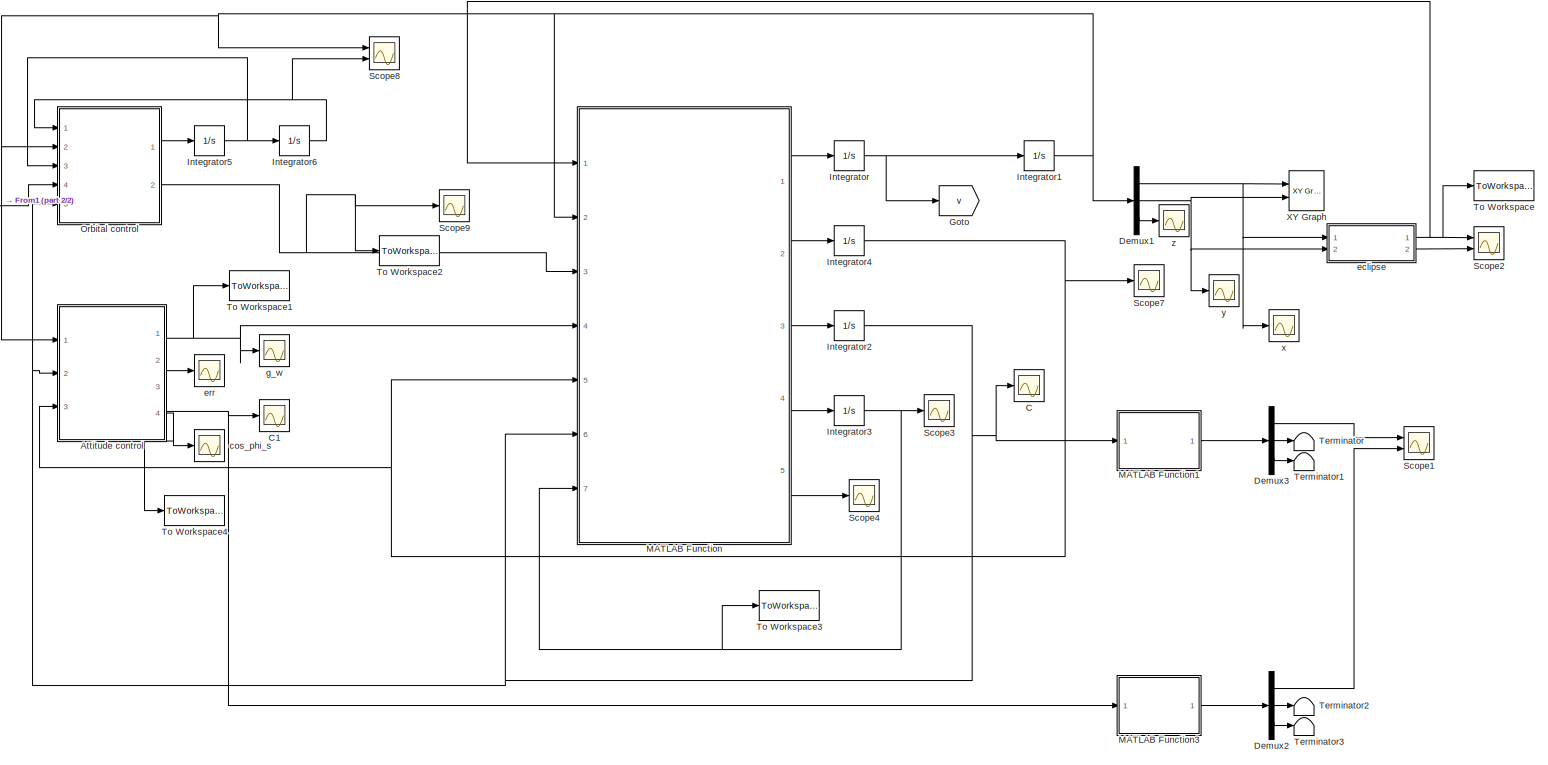
[diagram: root canvas - part 1/2, most of the canvas]
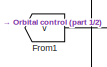
[diagram: root canvas - part 2/2, top left region]
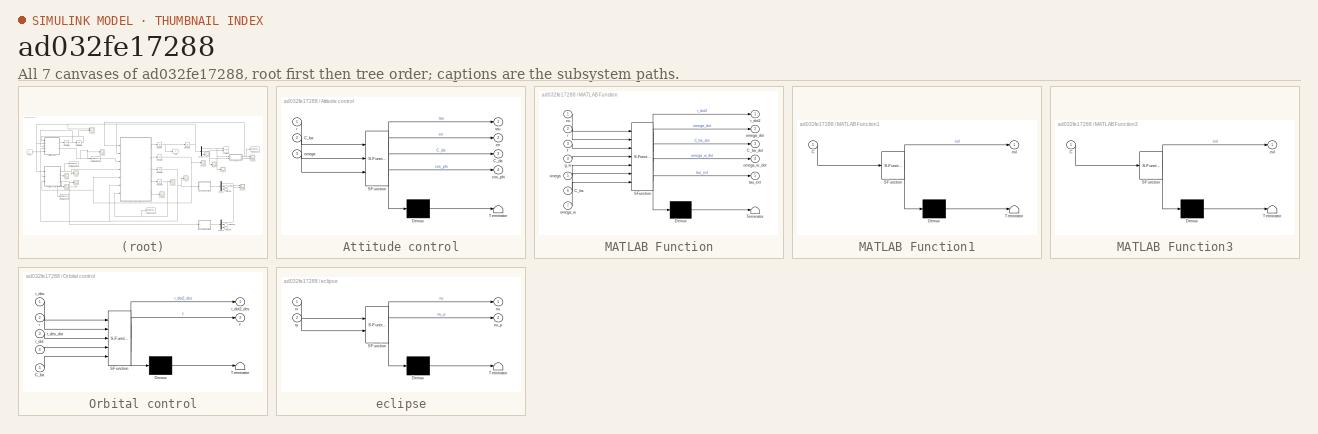
[diagram: thumbnail index - all 7 canvases of the model, root first then tree order]
MODEL slx_ad032fe17288
KIND model
CONFIG AbsTol = auto
CONFIG EnableMultiTasking = off
CONFIG FixedStep = 1
CONFIG MaxStep = auto
CONFIG MinStep = auto
CONFIG RelTol = 1e-6
CONFIG SampleTimeConstraint = Unconstrained
CONFIG Solver = ode23t
CONFIG SolverName = ode23t
CONFIG StartTime = 0.0
CONFIG StopTime = 3600*24*2
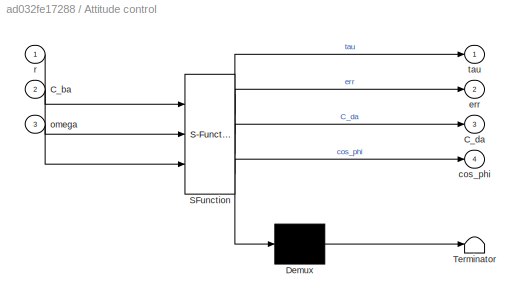
BLOCK [SubSystem] Attitude control
  ErrorFcn = Stateflow.Translate.translate
  PermitHierarchicalResolution = ExplicitOnly
  Ports = [3, 4]
  RequestExecContextInheritance = off
  SFBlockType = MATLAB Function
  TreatAsAtomicUnit = on
BLOCK [Demux] Attitude control/ Demux 
  Outputs = 1
  Ports = [1, 1]
BLOCK [S-Function] Attitude control/ SFunction 
  EnableBusSupport = on
  FunctionName = sf_sfun
  PortCounts = [3 5]
  Ports = [3, 5]
  SFcnIsStateOwnerBlock = off
  SFunctionDeploymentMode = off
  Tag = Stateflow S-Function satellite 4
BLOCK [Terminator] Attitude control/ Terminator 
BLOCK [Inport] Attitude control/C_ba
  IconDisplay = Port number
  Port = 2
BLOCK [Outport] Attitude control/C_da
  IconDisplay = Port number
  Port = 3
BLOCK [Outport] Attitude control/cos_phi
  IconDisplay = Port number
  Port = 4
BLOCK [Outport] Attitude control/err
  IconDisplay = Port number
  Port = 2
BLOCK [Inport] Attitude control/omega
  IconDisplay = Port number
  Port = 3
BLOCK [Inport] Attitude control/r
  IconDisplay = Port number
BLOCK [Outport] Attitude control/tau
  IconDisplay = Port number
BLOCK [Scope] C
  Floating = off
  NumInputPorts = 1
  Ports = [1]
  ScopeSpecificationString = Simulink.scopes.TimeScopeBlockCfg('CurrentConfiguration', extmgr.ConfigurationSet(extmgr.Configuration('Core','General UI',true),extmgr.Configuration('Core','Source UI',true),extmgr.Configuration('Sources','WiredSimulink',true,'DataLoggingVariableName','ScopeData8'),extmgr.Configuration('Visuals','Time Domain',true,'SerializedDisplays',{struct('MinYLimReal','-1.25016','MaxYLimReal','1.25009','YLab...<+1907ch>
BLOCK [Scope] C1
  Floating = off
  NumInputPorts = 1
  Ports = [1]
  ScopeSpecificationString = Simulink.scopes.TimeScopeBlockCfg('CurrentConfiguration', extmgr.ConfigurationSet(extmgr.Configuration('Core','General UI',true),extmgr.Configuration('Core','Source UI',true),extmgr.Configuration('Sources','WiredSimulink',true,'DataLoggingVariableName','ScopeData9'),extmgr.Configuration('Visuals','Time Domain',true,'SerializedDisplays',{struct('MinYLimReal','-1.25','MaxYLimReal','1.25','YLabelReal...<+1978ch>
BLOCK [Demux] Demux1
  DisplayOption = bar
  Outputs = 3
  Ports = [1, 3]
BLOCK [Demux] Demux2
  DisplayOption = bar
  Outputs = 3
  Ports = [1, 3]
BLOCK [Demux] Demux3
  DisplayOption = bar
  Outputs = 3
  Ports = [1, 3]
BLOCK [From] From1
  GotoTag = v
BLOCK [Goto] Goto
  GotoTag = v
BLOCK [Integrator] Integrator
  InitialCondition = [0; 3.0690; 0]
  Ports = [1, 1]
BLOCK [Integrator] Integrator1
  InitialCondition = [-42164 ; 0 ; 0]
  Ports = [1, 1]
BLOCK [Integrator] Integrator2
  InitialCondition = eye(3)
  Ports = [1, 1]
BLOCK [Integrator] Integrator3
  InitialCondition = [0; 0; 0]
  Ports = [1, 1]
BLOCK [Integrator] Integrator4
  InitialCondition = [0;0;0]
  Ports = [1, 1]
BLOCK [Integrator] Integrator5
  InitialCondition = [0; 3.0690; 0]
  Ports = [1, 1]
BLOCK [Integrator] Integrator6
  InitialCondition = [-42164 ; 0 ; 0]
  Ports = [1, 1]
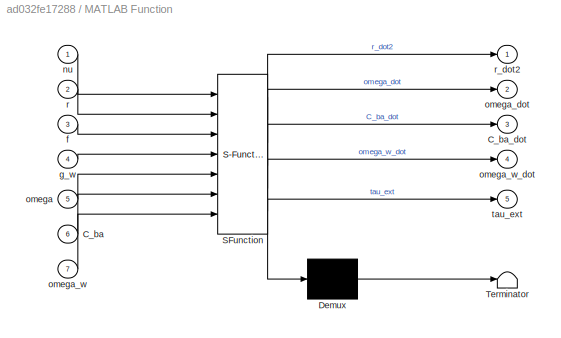
BLOCK [SubSystem] MATLAB Function
  ErrorFcn = Stateflow.Translate.translate
  PermitHierarchicalResolution = ExplicitOnly
  Ports = [7, 5]
  RequestExecContextInheritance = off
  SFBlockType = MATLAB Function
  TreatAsAtomicUnit = on
BLOCK [Demux] MATLAB Function/ Demux 
  Outputs = 1
  Ports = [1, 1]
BLOCK [S-Function] MATLAB Function/ SFunction 
  EnableBusSupport = on
  FunctionName = sf_sfun
  PortCounts = [7 6]
  Ports = [7, 6]
  SFcnIsStateOwnerBlock = off
  SFunctionDeploymentMode = off
  Tag = Stateflow S-Function satellite 2
BLOCK [Terminator] MATLAB Function/ Terminator 
BLOCK [Inport] MATLAB Function/C_ba
  IconDisplay = Port number
  Port = 6
BLOCK [Outport] MATLAB Function/C_ba_dot
  IconDisplay = Port number
  Port = 3
BLOCK [Inport] MATLAB Function/f
  IconDisplay = Port number
  Port = 3
BLOCK [Inport] MATLAB Function/g_w
  IconDisplay = Port number
  Port = 4
BLOCK [Inport] MATLAB Function/nu
  IconDisplay = Port number
BLOCK [Inport] MATLAB Function/omega
  IconDisplay = Port number
  Port = 5
BLOCK [Outport] MATLAB Function/omega_dot
  IconDisplay = Port number
  Port = 2
BLOCK [Inport] MATLAB Function/omega_w
  IconDisplay = Port number
  Port = 7
BLOCK [Outport] MATLAB Function/omega_w_dot
  IconDisplay = Port number
  Port = 4
BLOCK [Inport] MATLAB Function/r
  IconDisplay = Port number
  Port = 2
BLOCK [Outport] MATLAB Function/r_dot2
  IconDisplay = Port number
BLOCK [Outport] MATLAB Function/tau_ext
  IconDisplay = Port number
  Port = 5
BLOCK [SubSystem] MATLAB Function1
  ErrorFcn = Stateflow.Translate.translate
  PermitHierarchicalResolution = ExplicitOnly
  Ports = [1, 1]
  RequestExecContextInheritance = off
  SFBlockType = MATLAB Function
  TreatAsAtomicUnit = on
BLOCK [Demux] MATLAB Function1/ Demux 
  Outputs = 1
  Ports = [1, 1]
BLOCK [S-Function] MATLAB Function1/ SFunction 
  EnableBusSupport = on
  FunctionName = sf_sfun
  PortCounts = [1 2]
  Ports = [1, 2]
  SFcnIsStateOwnerBlock = off
  SFunctionDeploymentMode = off
  Tag = Stateflow S-Function satellite 5
BLOCK [Terminator] MATLAB Function1/ Terminator 
BLOCK [Inport] MATLAB Function1/C
  IconDisplay = Port number
BLOCK [Outport] MATLAB Function1/eul
  IconDisplay = Port number
BLOCK [SubSystem] MATLAB Function3
  ErrorFcn = Stateflow.Translate.translate
  PermitHierarchicalResolution = ExplicitOnly
  Ports = [1, 1]
  RequestExecContextInheritance = off
  SFBlockType = MATLAB Function
  TreatAsAtomicUnit = on
BLOCK [Demux] MATLAB Function3/ Demux 
  Outputs = 1
  Ports = [1, 1]
BLOCK [S-Function] MATLAB Function3/ SFunction 
  EnableBusSupport = on
  FunctionName = sf_sfun
  PortCounts = [1 2]
  Ports = [1, 2]
  SFcnIsStateOwnerBlock = off
  SFunctionDeploymentMode = off
  Tag = Stateflow S-Function satellite 6
BLOCK [Terminator] MATLAB Function3/ Terminator 
BLOCK [Inport] MATLAB Function3/C
  IconDisplay = Port number
BLOCK [Outport] MATLAB Function3/eul
  IconDisplay = Port number
BLOCK [SubSystem] Orbital control
  ErrorFcn = Stateflow.Translate.translate
  PermitHierarchicalResolution = ExplicitOnly
  Ports = [5, 2]
  RequestExecContextInheritance = off
  SFBlockType = MATLAB Function
  TreatAsAtomicUnit = on
BLOCK [Demux] Orbital control/ Demux 
  Outputs = 1
  Ports = [1, 1]
BLOCK [S-Function] Orbital control/ SFunction 
  EnableBusSupport = on
  FunctionName = sf_sfun
  PortCounts = [5 3]
  Ports = [5, 3]
  SFcnIsStateOwnerBlock = off
  SFunctionDeploymentMode = off
  Tag = Stateflow S-Function satellite 7
BLOCK [Terminator] Orbital control/ Terminator 
BLOCK [Inport] Orbital control/C_ba
  IconDisplay = Port number
  Port = 5
BLOCK [Outport] Orbital control/f
  IconDisplay = Port number
  Port = 2
BLOCK [Inport] Orbital control/r
  IconDisplay = Port number
  Port = 2
BLOCK [Inport] Orbital control/r_des
  IconDisplay = Port number
BLOCK [Inport] Orbital control/r_des_dot
  IconDisplay = Port number
  Port = 3
BLOCK [Inport] Orbital control/r_dot
  IconDisplay = Port number
  Port = 4
BLOCK [Outport] Orbital control/r_dot2_des
  IconDisplay = Port number
BLOCK [Scope] Scope1
  Floating = off
  NumInputPorts = 2
  Ports = [2]
  ScopeSpecificationString = Simulink.scopes.TimeScopeBlockCfg('CurrentConfiguration', extmgr.ConfigurationSet(extmgr.Configuration('Core','General UI',true),extmgr.Configuration('Core','Source UI',true),extmgr.Configuration('Sources','WiredSimulink',true,'DataLoggingVariableName','ScopeData2'),extmgr.Configuration('Visuals','Time Domain',true,'SerializedDisplays',{struct('MinYLimReal','-3.92693','MaxYLimReal','3.92696','YLab...<+1480ch>
BLOCK [Scope] Scope2
  Floating = off
  NumInputPorts = 2
  Ports = [2]
  ScopeSpecificationString = Simulink.scopes.TimeScopeBlockCfg('CurrentConfiguration', extmgr.ConfigurationSet(extmgr.Configuration('Core','General UI',true),extmgr.Configuration('Core','Source UI',true),extmgr.Configuration('Sources','WiredSimulink',true,'DataLoggingVariableName','ScopeData1'),extmgr.Configuration('Visuals','Time Domain',true,'SerializedDisplays',{struct('MinYLimReal','-17.97138','MaxYLimReal','3.10793','YLa...<+1794ch>
BLOCK [Scope] Scope3
  Floating = off
  NumInputPorts = 1
  Ports = [1]
  ScopeSpecificationString = Simulink.scopes.TimeScopeBlockCfg('CurrentConfiguration', extmgr.ConfigurationSet(extmgr.Configuration('Core','General UI',true),extmgr.Configuration('Core','Source UI',true),extmgr.Configuration('Sources','WiredSimulink',true,'DataLoggingVariableName','ScopeData1'),extmgr.Configuration('Visuals','Time Domain',true,'SerializedDisplays',{struct('MinYLimReal','-0.00656','MaxYLimReal','0.05583','YLab...<+1433ch>
BLOCK [Scope] Scope4
  Floating = off
  NumInputPorts = 1
  Ports = [1]
  ScopeSpecificationString = Simulink.scopes.TimeScopeBlockCfg('CurrentConfiguration', extmgr.ConfigurationSet(extmgr.Configuration('Core','General UI',true),extmgr.Configuration('Core','Source UI',true),extmgr.Configuration('Sources','WiredSimulink',true,'DataLoggingVariableName','ScopeData1'),extmgr.Configuration('Visuals','Time Domain',true,'SerializedDisplays',{struct('MinYLimReal','-0.00221','MaxYLimReal','0.00992','YLab...<+1488ch>
BLOCK [Scope] Scope7
  Floating = off
  NumInputPorts = 1
  Ports = [1]
  ScopeSpecificationString = Simulink.scopes.TimeScopeBlockCfg('CurrentConfiguration', extmgr.ConfigurationSet(extmgr.Configuration('Core','General UI',true),extmgr.Configuration('Core','Source UI',true),extmgr.Configuration('Sources','WiredSimulink',true,'DataLoggingVariableName','ScopeData3'),extmgr.Configuration('Visuals','Time Domain',true,'SerializedDisplays',{struct('MinYLimReal','-0.00024','MaxYLimReal','0.00008','YLab...<+1433ch>
BLOCK [Scope] Scope8
  Floating = off
  NumInputPorts = 2
  Ports = [2]
  ScopeSpecificationString = Simulink.scopes.TimeScopeBlockCfg('CurrentConfiguration', extmgr.ConfigurationSet(extmgr.Configuration('Core','General UI',true),extmgr.Configuration('Core','Source UI',true),extmgr.Configuration('Sources','WiredSimulink',true,'DataLoggingVariableName','ScopeData1'),extmgr.Configuration('Visuals','Time Domain',true,'SerializedDisplays',{struct('MinYLimReal','-52685.62612','MaxYLimReal','52530.6207...<+1584ch>
BLOCK [Scope] Scope9
  Floating = off
  NumInputPorts = 1
  Ports = [1]
  ScopeSpecificationString = Simulink.scopes.TimeScopeBlockCfg('CurrentConfiguration', extmgr.ConfigurationSet(extmgr.Configuration('Core','General UI',true),extmgr.Configuration('Core','Source UI',true),extmgr.Configuration('Sources','WiredSimulink',true,'DataLoggingVariableName','ScopeData2'),extmgr.Configuration('Visuals','Time Domain',true,'SerializedDisplays',{struct('MinYLimReal','-21276637.16293','MaxYLimReal','2068049...<+1553ch>
BLOCK [Terminator] Terminator
BLOCK [Terminator] Terminator1
BLOCK [Terminator] Terminator2
BLOCK [Terminator] Terminator3
BLOCK [ToWorkspace] To Workspace
  FixptAsFi = on
  MaxDataPoints = inf
  Ports = [1]
  SampleTime = -1
  Save2DSignal = 3-D array (concatenate along third dimension)
  SaveFormat = Timeseries
  VariableName = nu_sim
BLOCK [ToWorkspace] To Workspace1
  FixptAsFi = on
  MaxDataPoints = inf
  Ports = [1]
  SampleTime = -1
  Save2DSignal = 3-D array (concatenate along third dimension)
  SaveFormat = Timeseries
  VariableName = g_w
BLOCK [ToWorkspace] To Workspace2
  FixptAsFi = on
  MaxDataPoints = inf
  Ports = [1]
  SampleTime = -1
  Save2DSignal = 3-D array (concatenate along third dimension)
  SaveFormat = Timeseries
  VariableName = f
BLOCK [ToWorkspace] To Workspace3
  FixptAsFi = on
  MaxDataPoints = inf
  Ports = [1]
  SampleTime = -1
  Save2DSignal = 3-D array (concatenate along third dimension)
  SaveFormat = Timeseries
  VariableName = omega_w
BLOCK [ToWorkspace] To Workspace4
  FixptAsFi = on
  MaxDataPoints = inf
  Ports = [1]
  SampleTime = -1
  Save2DSignal = 3-D array (concatenate along third dimension)
  SaveFormat = Timeseries
  VariableName = cos_phi_s
BLOCK [Reference] XY Graph  REF=simulink/Sinks/XY Graph
  Ports = [2]
  SourceBlock = simulink/Sinks/XY Graph
  SourceProductBaseCode = SL
  SourceProductName = Simulink
  SourceType = XY scope.
BLOCK [Scope] cos_phi_s 
  Floating = off
  NumInputPorts = 1
  Ports = [1]
  ScopeSpecificationString = Simulink.scopes.TimeScopeBlockCfg('CurrentConfiguration', extmgr.ConfigurationSet(extmgr.Configuration('Core','General UI',true),extmgr.Configuration('Core','Source UI',true),extmgr.Configuration('Sources','WiredSimulink',true,'DataLoggingVariableName','ScopeData1'),extmgr.Configuration('Visuals','Time Domain',true,'SerializedDisplays',{struct('MinYLimReal','-1.25001','MaxYLimReal','1.25001','YLab...<+1756ch>
BLOCK [SubSystem] eclipse
  ErrorFcn = Stateflow.Translate.translate
  PermitHierarchicalResolution = ExplicitOnly
  Ports = [2, 2]
  RequestExecContextInheritance = off
  SFBlockType = MATLAB Function
  TreatAsAtomicUnit = on
BLOCK [Demux] eclipse/ Demux 
  Outputs = 1
  Ports = [1, 1]
BLOCK [S-Function] eclipse/ SFunction 
  EnableBusSupport = on
  FunctionName = sf_sfun
  PortCounts = [2 3]
  Ports = [2, 3]
  SFcnIsStateOwnerBlock = off
  SFunctionDeploymentMode = off
  Tag = Stateflow S-Function satellite 1
BLOCK [Terminator] eclipse/ Terminator 
BLOCK [Outport] eclipse/nu
  IconDisplay = Port number
BLOCK [Outport] eclipse/nu_p
  IconDisplay = Port number
  Port = 2
BLOCK [Inport] eclipse/rx
  IconDisplay = Port number
BLOCK [Inport] eclipse/ry
  IconDisplay = Port number
  Port = 2
BLOCK [Scope] err
  Floating = off
  NumInputPorts = 1
  Ports = [1]
  ScopeSpecificationString = Simulink.scopes.TimeScopeBlockCfg('CurrentConfiguration', extmgr.ConfigurationSet(extmgr.Configuration('Core','General UI',true),extmgr.Configuration('Core','Source UI',true),extmgr.Configuration('Sources','WiredSimulink',true,'DataLoggingVariableName','ScopeData6'),extmgr.Configuration('Visuals','Time Domain',true,'SerializedDisplays',{struct('MinYLimReal','-0.01209','MaxYLimReal','0.00134','YLab...<+1837ch>
BLOCK [Scope] g_w
  Floating = off
  NumInputPorts = 1
  Ports = [1]
  ScopeSpecificationString = Simulink.scopes.TimeScopeBlockCfg('CurrentConfiguration', extmgr.ConfigurationSet(extmgr.Configuration('Core','General UI',true),extmgr.Configuration('Core','Source UI',true),extmgr.Configuration('Sources','WiredSimulink',true,'DataLoggingVariableName','ScopeData7'),extmgr.Configuration('Visuals','Time Domain',true,'SerializedDisplays',{struct('MinYLimReal','-0.00022','MaxYLimReal','0.00023','YLab...<+1478ch>
BLOCK [Scope] x
  Floating = off
  NumInputPorts = 1
  Ports = [1]
  ScopeSpecificationString = Simulink.scopes.TimeScopeBlockCfg('CurrentConfiguration', extmgr.ConfigurationSet(extmgr.Configuration('Core','General UI',true),extmgr.Configuration('Core','Source UI',true),extmgr.Configuration('Sources','WiredSimulink',true,'DataLoggingVariableName','ScopeData1'),extmgr.Configuration('Visuals','Time Domain',true,'SerializedDisplays',{struct('MinYLimReal','-52666.33256','MaxYLimReal','52356.9372...<+1744ch>
BLOCK [Scope] y
  Floating = off
  NumInputPorts = 1
  Ports = [1]
  ScopeSpecificationString = Simulink.scopes.TimeScopeBlockCfg('CurrentConfiguration', extmgr.ConfigurationSet(extmgr.Configuration('Core','General UI',true),extmgr.Configuration('Core','Source UI',true),extmgr.Configuration('Sources','WiredSimulink',true,'DataLoggingVariableName','ScopeData4'),extmgr.Configuration('Visuals','Time Domain',true,'SerializedDisplays',{struct('MinYLimReal','-52511.08127','MaxYLimReal','52511.2431...<+1744ch>
BLOCK [Scope] z
  Floating = off
  NumInputPorts = 1
  Ports = [1]
  ScopeSpecificationString = Simulink.scopes.TimeScopeBlockCfg('CurrentConfiguration', extmgr.ConfigurationSet(extmgr.Configuration('Core','General UI',true),extmgr.Configuration('Core','Source UI',true),extmgr.Configuration('Sources','WiredSimulink',true,'DataLoggingVariableName','ScopeData5'),extmgr.Configuration('Visuals','Time Domain',true,'SerializedDisplays',{struct('MinYLimReal','-0.000008','MaxYLimReal','0.000008','YL...<+1722ch>
NET Attitude control:1 -> MATLAB Function:4, To Workspace1:1, g_w:1
LINE Attitude control:2 -> err:1
NET Attitude control:3 -> C1:1, MATLAB Function3:1
NET Attitude control:4 -> To Workspace4:1, cos_phi_s :1
NET Demux1:1 -> XY Graph:1, eclipse:1, x:1
NET Demux1:2 -> XY Graph:2, eclipse:2, y:1
LINE Demux1:3 -> z:1
LINE Demux2:1 -> Scope1:2
LINE Demux2:2 -> Terminator2:1
LINE Demux2:3 -> Terminator3:1
LINE Demux3:1 -> Scope1:1
LINE Demux3:2 -> Terminator:1
LINE Demux3:3 -> Terminator1:1
LINE From1:1 -> Orbital control:4
NET Integrator1:1 -> Attitude control:1, Demux1:1, MATLAB Function:2, Orbital control:2, Scope8:1
NET Integrator2:1 -> Attitude control:2, C:1, MATLAB Function1:1, MATLAB Function:6, Orbital control:5
NET Integrator3:1 -> MATLAB Function:7, Scope3:1, To Workspace3:1
NET Integrator4:1 -> Attitude control:3, MATLAB Function:5, Scope7:1
NET Integrator5:1 -> Integrator6:1, Orbital control:3
NET Integrator6:1 -> Orbital control:1, Scope8:2
NET Integrator:1 -> Goto:1, Integrator1:1
LINE MATLAB Function1:1 -> Demux3:1
LINE MATLAB Function3:1 -> Demux2:1
LINE MATLAB Function:1 -> Integrator:1
LINE MATLAB Function:2 -> Integrator4:1
LINE MATLAB Function:3 -> Integrator2:1
LINE MATLAB Function:4 -> Integrator3:1
LINE MATLAB Function:5 -> Scope4:1
LINE Orbital control:1 -> Integrator5:1
NET Orbital control:2 -> MATLAB Function:3, Scope9:1, To Workspace2:1
NET eclipse:1 -> MATLAB Function:1, Scope2:1, To Workspace:1
LINE eclipse:2 -> Scope2:2
note: NET lines group one-source signal fan-out (src -> all destinations, sorted); 1:1 wires keep LINE
CHART eclipse states=1 transitions=1
  STATE_LABEL 'eML_blk_kernel()'
  STATE_LABEL "SCRIPT:\nfunction [nu,  nu_p] = fcn(rx, ry)\nR_sun =  696e+3 ; \nR_earth = 6378.0 ;\nAU = 149597870 ; \nr0 = 42164; \nr_sun_earth = [-AU ; 0]; \nr_sat_earth = [rx; ry]; \nchi = R_earth / (R_sun -R_earth)* norm(r_sun_earth); \na_e = asin(R_earth/chi);\ntheta = r_sun_earth'*r_sat_earth / (norm(r_sun_earth)*norm(r_sat_earth));\n\n% a = pi - acos (theta) ; \n% gamma = (2*chi*cos(a_e) - sqrt( (2*chi*cos(a_e))^2 - 4...<+622ch>"
CHART MATLAB Function states=1 transitions=1
  STATE_LABEL 'eML_blk_kernel()'
  STATE_LABEL 'SCRIPT:\nfunction [r_dot2, omega_dot, C_ba_dot, omega_w_dot , tau_ext]= fcn(nu, r, f, g_w, omega, C_ba, omega_w)\nmu= 3.986004418e+14*1e-9; \nI=diag([1.1756e+04; 1.1756e+04; 5100]); \nI_w=22.5000; \nJ=I +I_w;\nm=3551; \np = 4.5*10^(-6);\nAU = 149597870 ; \nr_sun_earth = [-AU ; 0 ; 0];\nA = 108; \nl_SA = 2.0*18.0 + 3; %length lever arm for solar force\n\n% Orbital dynamics\nF_s = p*A*(r+r_sun_earth)/norm(r+r_sun...<+781ch>'
CHART Attitude control states=1 transitions=1
  STATE_LABEL 'eML_blk_kernel()'
  STATE_LABEL "SCRIPT:\nfunction [tau,err, C_da, cos_phi]= fcn(r, C_ba, omega)\n% Tracking type\nsw=1; % 1: earth pointing, other: sun pointing\n% Gains\n k = 0.012/10;\n u_max = 3*1200e-3;\n w_max = u_max*(1-k);\n Kp = k*u_max/pi;\n AU = 149597870 ; \n r_sun_earth = [-AU ; 0 ; 0];\n s = -(r + r_sun_earth)/norm(r + r_sun_earth); % unit vector pointing towards sun\n n_panel  = C_ba'*[1; 0; 0]; % solar panel normal \n cos_phi ...<+843ch>"
CHART MATLAB Function1 states=1 transitions=1
  STATE_LABEL 'eML_blk_kernel()'
  STATE_LABEL 'SCRIPT:\nfunction eul= fcn(C)\n% DCM to Euler\nphi = atan2(C(1,2),C(1,1));\ntheta = asin(-C(1,3)); \npsi = atan2(C(2,3),C(3,3)); \neul = [phi; theta; psi]; \n'
CHART MATLAB Function3 states=1 transitions=1
  STATE_LABEL 'eML_blk_kernel()'
  STATE_LABEL 'SCRIPT:\nfunction eul= fcn(C)\n% DCM to Euler\nphi = atan2(C(1,2),C(1,1));\ntheta = asin(-C(1,3)); \npsi = atan2(C(2,3),C(3,3)); \neul = [phi; theta; psi]; \n'
CHART Orbital control states=1 transitions=1
  STATE_LABEL 'eML_blk_kernel()'
  STATE_LABEL 'SCRIPT:\nfunction [r_dot2_des, f]   = fcn(r_des, r, r_des_dot, r_dot, C_ba)\nmu= 3.986004418e+14*1e-9;\nm=3551; \n\nkp=.1; \nkd=.1; \n\nf = m*C_ba*(kp*(r_des - r) + kd*(r_des_dot - r_dot)) ; \n\nr_dot2_des = -mu*r_des/norm(r_des)^3;\n\n'
